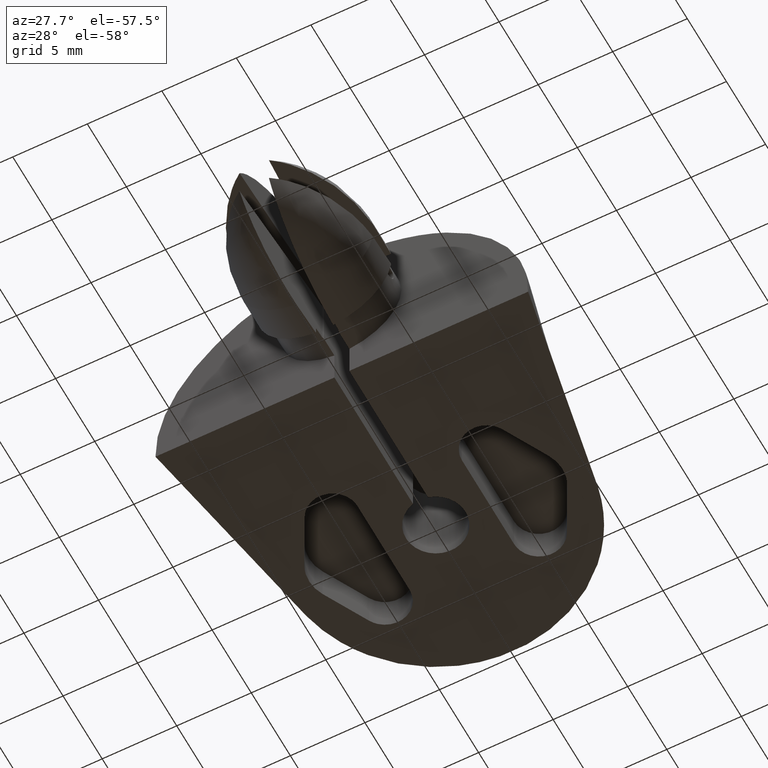
[diagram: clean part render]
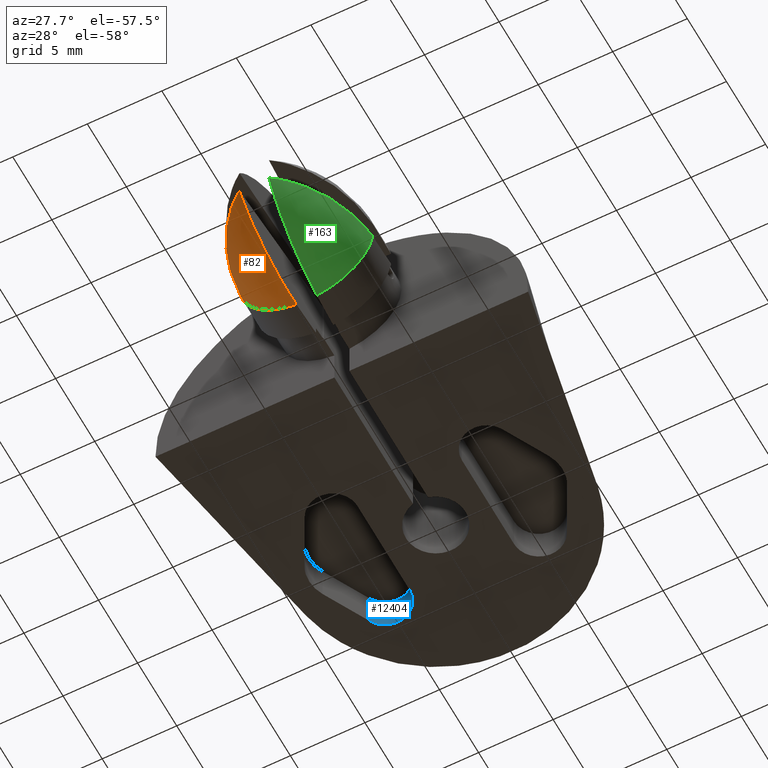
[diagram: same view with three faces highlighted in distinct colors, each labeled with its STEP entity id]
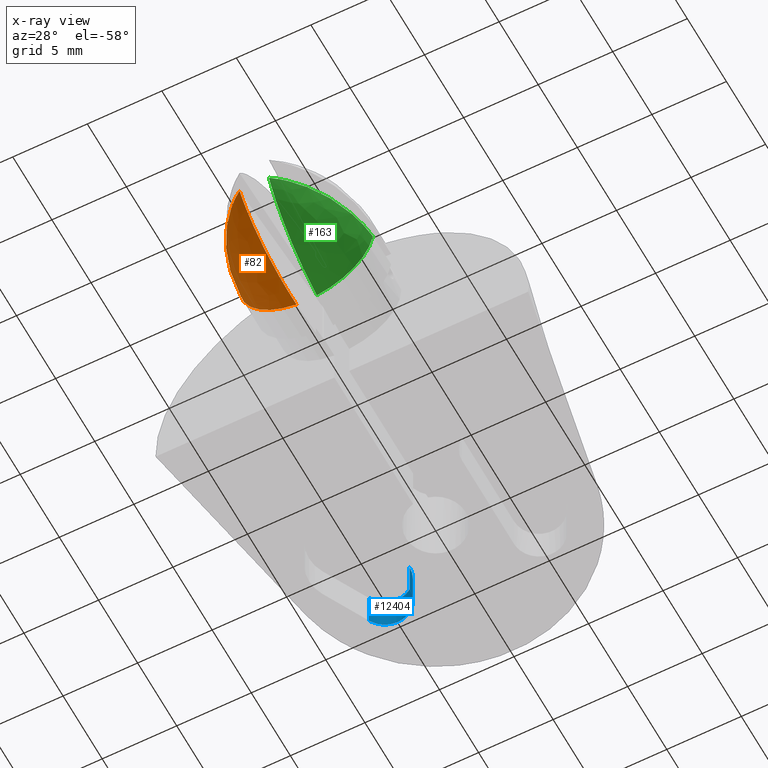
[diagram: x-ray of the same camera — body ghosted, the three highlighted faces saturated]
A machine part, auxiliary view with three faces highlighted in distinct colors.
The next image is the same camera in x-ray (body ghosted, the three faces saturated) — at least one of them is partly hidden behind the body in this view.
Their STEP definitions:

[orange] entity #82 — the highlighted face is a freeform B-spline surface patch.
#2=CARTESIAN_POINT('',(-0.213041297754366,-23.177248540654844,5.007271922680552));
#3=CARTESIAN_POINT('',(-1.237607334957659,-23.177248540654848,5.164042559470374));
#4=CARTESIAN_POINT('',(-1.392672889532584,-23.177248540654844,6.188868042630467));
#5=CARTESIAN_POINT('',(-0.642349839336902,-20.456934517043848,2.201549115185564));
#6=CARTESIAN_POINT('',(-3.731561565577898,-20.456934517043834,2.674234790794515));
#7=CARTESIAN_POINT('',(-4.199106176793528,-20.456934517043848,5.764228783344322));
#8=CARTESIAN_POINT('',(-0.680631201955308,-16.500313095813041,1.951363335502499));
#9=CARTESIAN_POINT('',(-3.953946999382978,-16.500313095813041,2.452219096227985));
#10=CARTESIAN_POINT('',(-4.449355309824860,-16.500313095813041,5.726363779757811));
#18=(BOUNDED_SURFACE()B_SPLINE_SURFACE(2,2,((#2,#5,#8),(#3,#6,#9),(#4,#7,#10)),.UNSPECIFIED.,.F.,.F.,.U.)GEOMETRIC_REPRESENTATION_ITEM()QUASI_UNIFORM_SURFACE()RATIONAL_B_SPLINE_SURFACE(((1.0,1.0,1.0),(0.805429800487922,0.805429800487922,0.805429800487922),(1.0,1.0,1.0)))REPRESENTATION_ITEM('')SURFACE());
#19=CARTESIAN_POINT('',(-0.680637247930036,-16.500313095813041,1.951364260611847));
#20=VERTEX_POINT('',#19);
#21=CARTESIAN_POINT('',(-4.449354394776393,-16.500313095813041,5.726357732246513));
#22=VERTEX_POINT('',#21);
#23=CARTESIAN_POINT('',(0.000000074681687,-16.500313095813041,6.399592316261412));
#24=DIRECTION('',(0.0,1.0,0.0));
#25=DIRECTION('',(1.0,0.0,0.0));
#26=AXIS2_PLACEMENT_3D('',#23,#24,#25);
#27=CIRCLE('',#26,4.500000000000000);
#28=EDGE_CURVE('',#20,#22,#27,.T.);
#29=ORIENTED_EDGE('',*,*,#28,.F.);
#30=CARTESIAN_POINT('',(-0.983063032099729,-23.177248540654844,5.390865577825331));
#31=VERTEX_POINT('',#30);
#32=CARTESIAN_POINT('',(-0.983063032099729,-23.177248540654844,5.390865577825309));
#33=CARTESIAN_POINT('',(-0.981122417635191,-23.134403789375916,5.326552037131926));
#34=CARTESIAN_POINT('',(-0.977013818791427,-23.043694429643693,5.198809113835651));
#35=CARTESIAN_POINT('',(-0.967901260092255,-22.842507991990104,4.942926808763936));
#36=CARTESIAN_POINT('',(-0.956682991498525,-22.594831837627240,4.666639549910002));
#37=CARTESIAN_POINT('',(-0.943092837909845,-22.294789371188919,4.369977863891855));
#38=CARTESIAN_POINT('',(-0.926705542087468,-21.932991792909718,4.045248510776894));
#39=CARTESIAN_POINT('',(-0.905239598736792,-21.459068187458747,3.672749574176741));
#40=CARTESIAN_POINT('',(-0.878479715040221,-20.868265334970438,3.281492799745266));
#41=CARTESIAN_POINT('',(-0.850702241490460,-20.254996204423783,2.942912391620659));
#42=CARTESIAN_POINT('',(-0.821955107387197,-19.620318975566775,2.653843205943012));
#43=CARTESIAN_POINT('',(-0.792226060326392,-18.963963140674998,2.412864187133074));
#44=CARTESIAN_POINT('',(-0.762685405441808,-18.311766615155825,2.227684522285195));
#45=CARTESIAN_POINT('',(-0.731947820346853,-17.633144347637582,2.083320517389858));
#46=CARTESIAN_POINT('',(-0.705036627946917,-17.039000912111547,1.997365559908218));
#47=CARTESIAN_POINT('',(-0.687159832244966,-16.644318259010063,1.961681252820924));
#48=CARTESIAN_POINT('',(-0.680637247930036,-16.500313095813041,1.951364260611847));
#49=B_SPLINE_CURVE_WITH_KNOTS('',3,(#32,#33,#34,#35,#36,#37,#38,#39,#40,#41,#42,#43,#44,#45,#46,#47,#48),.UNSPECIFIED.,.F.,.U.,(4,1,1,1,1,1,1,1,1,1,1,1,1,1,4),(0.0,2.319351796134193,4.699730491367289,9.766477983919929,13.447195932972642,17.361147971487320,24.355016483708237,31.527346935876086,38.617061032672567,45.370672913062137,52.452782203177890,59.596612754553384,65.715394039948819,73.277772019839134,77.613674783590454),.UNSPECIFIED.);
#50=EDGE_CURVE('',#31,#20,#49,.T.);
#51=ORIENTED_EDGE('',*,*,#50,.F.);
#52=CARTESIAN_POINT('',(-1.015888477623470,-23.177248540654844,5.423931948076877));
#53=VERTEX_POINT('',#52);
#54=CARTESIAN_POINT('',(0.000000074681687,-23.177248540654844,6.399592316261412));
#55=DIRECTION('',(0.0,1.0,0.0));
#56=DIRECTION('',(1.0,0.0,0.0));
#57=AXIS2_PLACEMENT_3D('',#54,#55,#56);
#58=CIRCLE('',#57,1.408525010339045);
#59=EDGE_CURVE('',#31,#53,#58,.T.);
#60=ORIENTED_EDGE('',*,*,#59,.T.);
#61=CARTESIAN_POINT('',(-4.449354394776393,-16.500313095813041,5.726357732246513));
#62=CARTESIAN_POINT('',(-4.438860610876432,-16.646977329176266,5.719714707740586));
#63=CARTESIAN_POINT('',(-4.403824662078833,-17.033423370380099,5.702210981964633));
#64=CARTESIAN_POINT('',(-4.317311634750972,-17.635017622061000,5.674962311549955));
#65=CARTESIAN_POINT('',(-4.172165938745174,-18.318353551982042,5.644011225357069));
#66=CARTESIAN_POINT('',(-3.984102851401275,-18.975309989435146,5.614254974543599));
#67=CARTESIAN_POINT('',(-3.742836636085023,-19.631323541269651,5.584541430885977));
#68=CARTESIAN_POINT('',(-3.457757763345867,-20.256453715952063,5.556226722012688));
#69=CARTESIAN_POINT('',(-3.124067367665056,-20.860228940880702,5.528879266376841));
#70=CARTESIAN_POINT('',(-2.740545803770239,-21.443381236550621,5.502465907768652));
#71=CARTESIAN_POINT('',(-2.301507865222916,-22.005917871207714,5.476986316979485));
#72=CARTESIAN_POINT('',(-1.844604639597463,-22.497132265242584,5.454737202915304));
#73=CARTESIAN_POINT('',(-1.467595291768767,-22.838239773515134,5.439287045200345));
#74=CARTESIAN_POINT('',(-1.201054591801700,-23.047893307256857,5.429790977001161));
#75=CARTESIAN_POINT('',(-1.076026193897668,-23.136892286136430,5.425759848319402));
#76=CARTESIAN_POINT('',(-1.015888477623470,-23.177248540654844,5.423931948076877));
#77=B_SPLINE_CURVE_WITH_KNOTS('',3,(#61,#62,#63,#64,#65,#66,#67,#68,#69,#70,#71,#72,#73,#74,#75,#76),.UNSPECIFIED.,.F.,.U.,(4,1,1,1,1,1,1,1,1,1,1,1,1,4),(0.0,4.415946127419508,11.650121233098998,18.241780987039164,25.382697633888029,32.155851022661878,39.215970946190623,45.996506578026256,52.852671671436283,60.154109961146311,67.398542145226912,72.969343460833812,75.399632443656273,77.573256562139335),.UNSPECIFIED.);
#78=EDGE_CURVE('',#22,#53,#77,.T.);
#79=ORIENTED_EDGE('',*,*,#78,.F.);
#80=EDGE_LOOP('',(#29,#51,#60,#79));
#81=FACE_OUTER_BOUND('',#80,.T.);
#82=ADVANCED_FACE('',(#81),#18,.T.);

[blue] entity #12404 — the highlighted cylindrical surface (edge-blend (fillet) strip) has radius 1.6667 mm, axis along (-0, 0, -1).
#1706=CARTESIAN_POINT('',(-3.500000000012513,3.333333332305330,0.000021610733100));
#1707=VERTEX_POINT('',#1706);
#1716=CARTESIAN_POINT('',(-6.637254901132344,4.117647069689781,-0.000190128008093));
#1717=VERTEX_POINT('',#1716);
#1718=CARTESIAN_POINT('',(-3.500000000012513,3.333333332305330,0.000021610733100));
#1719=CARTESIAN_POINT('',(-3.500000000012705,3.381193107193795,0.000021503907696));
#1720=CARTESIAN_POINT('',(-3.505474262387750,3.508218599173404,0.000020822263160));
#1721=CARTESIAN_POINT('',(-3.542608347666615,3.742248985396998,0.000017543050106));
#1722=CARTESIAN_POINT('',(-3.640433502676871,4.030671345744551,0.000009458204566));
#1723=CARTESIAN_POINT('',(-3.809439677138165,4.320040122653140,-0.000004310933527));
#1724=CARTESIAN_POINT('',(-4.036340279156555,4.573503097248718,-0.000022655644770));
#1725=CARTESIAN_POINT('',(-4.305315160939166,4.773378979569444,-0.000044117325935));
#1726=CARTESIAN_POINT('',(-4.613459909161833,4.917511474566084,-0.000068123309205));
#1727=CARTESIAN_POINT('',(-4.939283805435203,4.995848036151614,-0.000092587390562));
#1728=CARTESIAN_POINT('',(-5.279269955511111,5.007543115512959,-0.000116797632025));
#1729=CARTESIAN_POINT('',(-5.609706797757475,4.951781434791158,-0.000138721927307));
#1730=CARTESIAN_POINT('',(-5.927026996834186,4.829163371272102,-0.000157928504969));
#1731=CARTESIAN_POINT('',(-6.209102507783847,4.648246257922480,-0.000173078550937));
#1732=CARTESIAN_POINT('',(-6.422874627738167,4.440166296937562,-0.000182805471184));
#1733=CARTESIAN_POINT('',(-6.557386834879601,4.257542404028854,-0.000187793268360));
#1734=CARTESIAN_POINT('',(-6.616531751423153,4.156502975367275,-0.000189570894584));
#1735=CARTESIAN_POINT('',(-6.637254901132344,4.117647069689781,-0.000190128008093));
#1736=B_SPLINE_CURVE_WITH_KNOTS('',3,(#1718,#1719,#1720,#1721,#1722,#1723,#1724,#1725,#1726,#1727,#1728,#1729,#1730,#1731,#1732,#1733,#1734,#1735),.UNSPECIFIED.,.F.,.U.,(4,1,1,1,1,1,1,1,1,1,1,1,1,1,1,4),(0.0,1.436230657726341,3.809957883764888,7.091195872895495,10.528683297482704,13.809921299099802,17.247408735845404,20.528646746108198,23.966134183049203,27.247372185899245,30.684859605836767,33.966097589382898,37.403584991208952,40.684822959729686,42.872314938451183,44.193756427239457),.UNSPECIFIED.);
#1737=EDGE_CURVE('',#1707,#1717,#1736,.T.);
#12363=CARTESIAN_POINT('',(-6.637254871986997,4.117524880008489,2.500222224661172));
#12364=VERTEX_POINT('',#12363);
#12365=CARTESIAN_POINT('',(-6.637254901132359,4.117647069689781,-0.000190128008093));
#12366=DIRECTION('',(0.000000011656222,-0.000048867812144,0.999999998805968));
#12367=VECTOR('',#12366,2.500412355654837);
#12368=LINE('',#12365,#12367);
#12369=EDGE_CURVE('',#1717,#12364,#12368,.T.);
#12380=CARTESIAN_POINT('',(-5.166666637295214,3.333211154838997,2.500183889823858));
#12381=DIRECTION('',(-0.000000011656221,0.000048867812144,-0.999999998805968));
#12382=DIRECTION('',(-0.242535625275426,-0.970142498927316,-0.000047405914398));
#12383=AXIS2_PLACEMENT_3D('',#12380,#12381,#12382);
#12384=CYLINDRICAL_SURFACE('',#12383,1.666666666425144);
#12385=ORIENTED_EDGE('',*,*,#12369,.F.);
#12386=ORIENTED_EDGE('',*,*,#1737,.F.);
#12387=CARTESIAN_POINT('',(-3.499999970870057,3.333211154846055,2.500183860396810));
#12388=VERTEX_POINT('',#12387);
#12389=CARTESIAN_POINT('',(-3.500000000012513,3.333333332305330,0.000021610733100));
#12390=DIRECTION('',(0.000000011656223,-0.000048867812143,0.999999998805968));
#12391=VECTOR('',#12390,2.500162252648983);
#12392=LINE('',#12389,#12391);
#12393=EDGE_CURVE('',#1707,#12388,#12392,.T.);
#12394=ORIENTED_EDGE('',*,*,#12393,.T.);
#12395=CARTESIAN_POINT('',(-5.166666637295208,3.333211154839503,2.500183879823859));
#12396=DIRECTION('',(-0.000000011656221,0.000048867812144,-0.999999998805968));
#12397=DIRECTION('',(1.0,3.929182E-012,-0.000000011656221));
#12398=AXIS2_PLACEMENT_3D('',#12395,#12396,#12397);
#12399=CIRCLE('',#12398,1.666666666425145);
#12400=EDGE_CURVE('',#12364,#12388,#12399,.T.);
#12401=ORIENTED_EDGE('',*,*,#12400,.F.);
#12402=EDGE_LOOP('',(#12385,#12386,#12394,#12401));
#12403=FACE_OUTER_BOUND('',#12402,.T.);
#12404=ADVANCED_FACE('',(#12403),#12384,.F.);

[green] entity #163 — the highlighted face is a freeform B-spline surface patch.
#83=CARTESIAN_POINT('',(1.392673038895914,-23.177248540654844,6.188868042630467));
#84=CARTESIAN_POINT('',(1.237607484320968,-23.177248540654844,5.164042559470374));
#85=CARTESIAN_POINT('',(0.213041447117682,-23.177248540654844,5.007271922680552));
#86=CARTESIAN_POINT('',(4.199106326156851,-20.456934517043848,5.764228783344301));
#87=CARTESIAN_POINT('',(3.731561714941208,-20.456934517043848,2.674234790794493));
#88=CARTESIAN_POINT('',(0.642349988700218,-20.456934517043848,2.201549115185564));
#89=CARTESIAN_POINT('',(4.449355459188197,-16.500313095813041,5.726363779757811));
#90=CARTESIAN_POINT('',(3.953947148746302,-16.500313095813048,2.452219096227957));
#91=CARTESIAN_POINT('',(0.680631351318588,-16.500313095813041,1.951363335502499));
#99=(BOUNDED_SURFACE()B_SPLINE_SURFACE(2,2,((#83,#86,#89),(#84,#87,#90),(#85,#88,#91)),.UNSPECIFIED.,.F.,.F.,.U.)GEOMETRIC_REPRESENTATION_ITEM()QUASI_UNIFORM_SURFACE()RATIONAL_B_SPLINE_SURFACE(((1.0,1.0,1.0),(0.805429800487920,0.805429800487920,0.805429800487920),(1.0,1.0,1.0)))REPRESENTATION_ITEM('')SURFACE());
#100=CARTESIAN_POINT('',(1.015888626986801,-23.177248540654844,5.423931948076877));
#101=VERTEX_POINT('',#100);
#102=CARTESIAN_POINT('',(0.983063181462903,-23.177248540654844,5.390865577825174));
#103=VERTEX_POINT('',#102);
#104=CARTESIAN_POINT('',(0.000000074681687,-23.177248540654844,6.399592316261412));
#105=DIRECTION('',(0.0,1.0,0.0));
#106=DIRECTION('',(1.0,0.0,0.0));
#107=AXIS2_PLACEMENT_3D('',#104,#105,#106);
#108=CIRCLE('',#107,1.408525010339045);
#109=EDGE_CURVE('',#101,#103,#108,.T.);
#110=ORIENTED_EDGE('',*,*,#109,.T.);
#111=CARTESIAN_POINT('',(0.680637397293353,-16.500313095813041,1.951364260611847));
#112=VERTEX_POINT('',#111);
#113=CARTESIAN_POINT('',(0.680637397293353,-16.500313095813041,1.951364260611847));
#114=CARTESIAN_POINT('',(0.687159981608282,-16.644318259010063,1.961681252820917));
#115=CARTESIAN_POINT('',(0.705036777310198,-17.039000912111462,1.997365559908211));
#116=CARTESIAN_POINT('',(0.731947969710141,-17.633144347637717,2.083320517389886));
#117=CARTESIAN_POINT('',(0.762685554805067,-18.311766615155825,2.227684522285180));
#118=CARTESIAN_POINT('',(0.792226209689645,-18.963963140674920,2.412864187133032));
#119=CARTESIAN_POINT('',(0.821955256750435,-19.620318975566903,2.653843205943034));
#120=CARTESIAN_POINT('',(0.850702390853684,-20.254996204423783,2.942912391620652));
#121=CARTESIAN_POINT('',(0.878479864403445,-20.868265334970438,3.281492799745251));
#122=CARTESIAN_POINT('',(0.905239748100001,-21.459068187458747,3.672749574176713));
#123=CARTESIAN_POINT('',(0.926705691450643,-21.932991792909732,4.045248510776844));
#124=CARTESIAN_POINT('',(0.943092987273069,-22.294789371188934,4.369977863891805));
#125=CARTESIAN_POINT('',(0.956683140861706,-22.594831837627247,4.666639549909938));
#126=CARTESIAN_POINT('',(0.967901409455436,-22.842507991990104,4.942926808763843));
#127=CARTESIAN_POINT('',(0.977013968154594,-23.043694429643693,5.198809113835551));
#128=CARTESIAN_POINT('',(0.981122566998373,-23.134403789375916,5.326552037131798));
#129=CARTESIAN_POINT('',(0.983063181462903,-23.177248540654872,5.390865577825174));
#130=B_SPLINE_CURVE_WITH_KNOTS('',3,(#113,#114,#115,#116,#117,#118,#119,#120,#121,#122,#123,#124,#125,#126,#127,#128,#129),.UNSPECIFIED.,.F.,.U.,(4,1,1,1,1,1,1,1,1,1,1,1,1,1,4),(0.0,4.335902763751372,11.898280743639882,18.017062029035348,25.160892580410799,32.243001870525099,38.996613750914669,46.086327847711104,53.258658299878924,60.252526812099745,64.166478850614382,67.847196799667017,72.913944292219483,75.294322987452304,77.613674783586205),.UNSPECIFIED.);
#131=EDGE_CURVE('',#112,#103,#130,.T.);
#132=ORIENTED_EDGE('',*,*,#131,.F.);
#133=CARTESIAN_POINT('',(4.449354544139702,-16.500313095813041,5.726357732246513));
#134=VERTEX_POINT('',#133);
#135=CARTESIAN_POINT('',(0.000000074681687,-16.500313095813041,6.399592316261412));
#136=DIRECTION('',(0.0,1.0,0.0));
#137=DIRECTION('',(1.0,0.0,0.0));
#138=AXIS2_PLACEMENT_3D('',#135,#136,#137);
#139=CIRCLE('',#138,4.500000000000000);
#140=EDGE_CURVE('',#134,#112,#139,.T.);
#141=ORIENTED_EDGE('',*,*,#140,.F.);
#142=CARTESIAN_POINT('',(1.015888626986801,-23.177248540654844,5.423931948076877));
#143=CARTESIAN_POINT('',(1.076026343260999,-23.136892286136430,5.425759848319402));
#144=CARTESIAN_POINT('',(1.201054741165052,-23.047893307256857,5.429790977001161));
#145=CARTESIAN_POINT('',(1.467595441132083,-22.838239773515134,5.439287045200345));
#146=CARTESIAN_POINT('',(1.844604788960872,-22.497132265242620,5.454737202915304));
#147=CARTESIAN_POINT('',(2.301508014585814,-22.005917871207529,5.476986316979485));
#148=CARTESIAN_POINT('',(2.740545953135140,-21.443381236551254,5.502465907768617));
#149=CARTESIAN_POINT('',(3.124067517022915,-20.860228940878486,5.528879266376933));
#150=CARTESIAN_POINT('',(3.457757912726407,-20.256453715966252,5.556226722012049));
#151=CARTESIAN_POINT('',(3.742836785367096,-19.631323541244335,5.584541430887121));
#152=CARTESIAN_POINT('',(3.984103000784948,-18.975309989449904,5.614254974542924));
#153=CARTESIAN_POINT('',(4.172166088102934,-18.318353551979904,5.644011225357154));
#154=CARTESIAN_POINT('',(4.317311784115823,-17.635017622062193,5.674962311549898));
#155=CARTESIAN_POINT('',(4.403824811441957,-17.033423370379381,5.702210981964662));
#156=CARTESIAN_POINT('',(4.438860760239770,-16.646977329176266,5.719714707740586));
#157=CARTESIAN_POINT('',(4.449354544139702,-16.500313095813041,5.726357732246513));
#158=B_SPLINE_CURVE_WITH_KNOTS('',3,(#142,#143,#144,#145,#146,#147,#148,#149,#150,#151,#152,#153,#154,#155,#156,#157),.UNSPECIFIED.,.F.,.U.,(4,1,1,1,1,1,1,1,1,1,1,1,1,4),(0.0,2.173624118483055,4.603913101305516,10.174714416912430,17.419146600993038,24.720584890703080,31.576749984113111,38.357285615948712,45.417405539276004,52.190558928240421,59.331475575089300,65.923135329027261,73.157310434696171,77.573256562115660),.UNSPECIFIED.);
#159=EDGE_CURVE('',#101,#134,#158,.T.);
#160=ORIENTED_EDGE('',*,*,#159,.F.);
#161=EDGE_LOOP('',(#110,#132,#141,#160));
#162=FACE_OUTER_BOUND('',#161,.T.);
#163=ADVANCED_FACE('',(#162),#99,.T.);